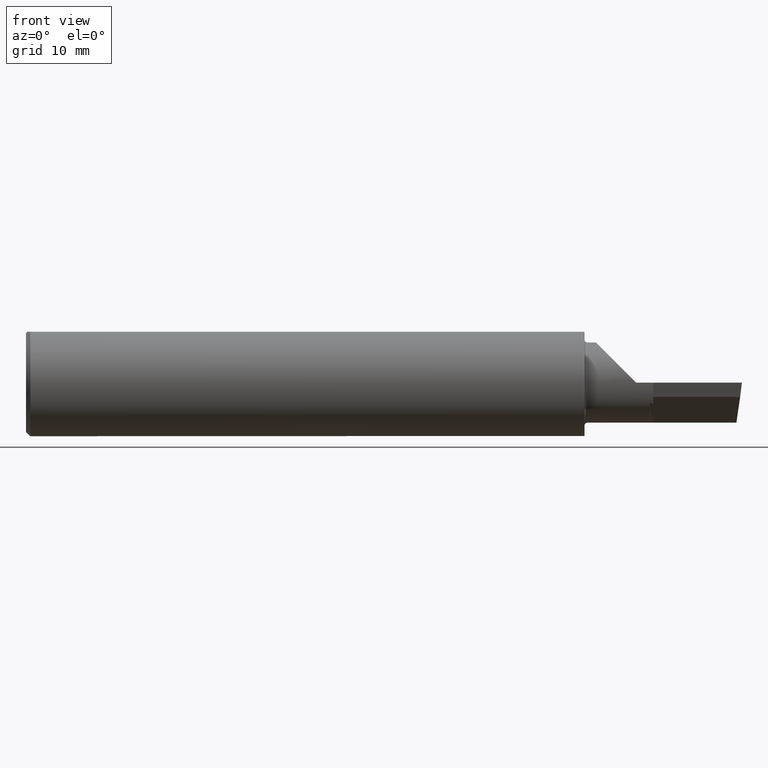
[diagram: clean part render]
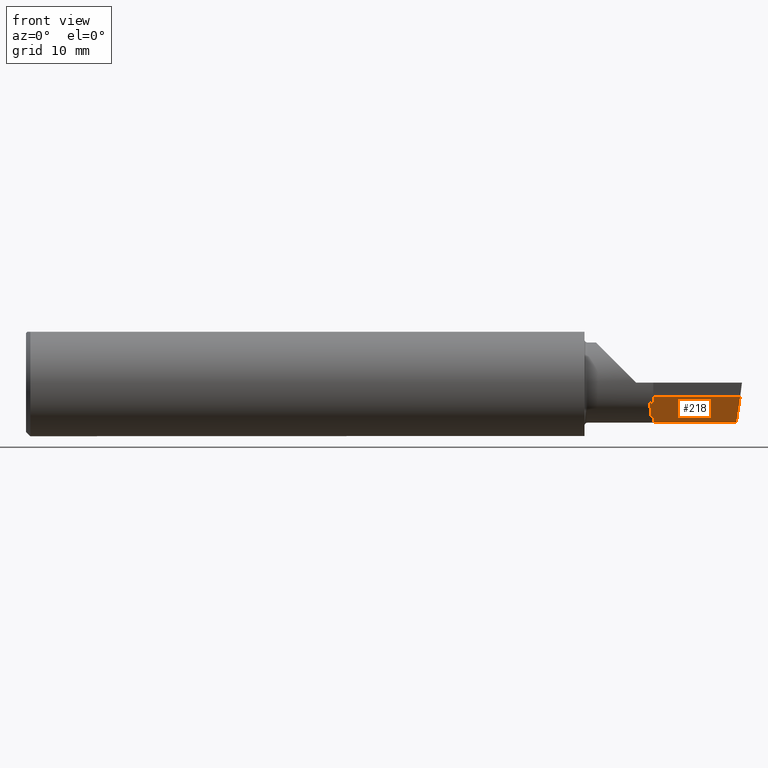
[diagram: same view with one face highlighted and labeled with its STEP entity id]
A machine part, front view. The second image highlights one B-rep face of the part: STEP entity #218.
In plain terms, the highlighted planar face has unit normal (0.0684, 0.71, 0.7009).
Its self-contained STEP definition (entity closure, byte-faithful):
#2 = ORIENTED_EDGE ( 'NONE', *, *, #161, .F. ) ;
#7 = CARTESIAN_POINT ( 'NONE',  ( 2.189999999999999947, 0.003938630626222059707, -0.1400500000000000078 ) ) ;
#11 = CARTESIAN_POINT ( 'NONE',  ( 2.177426863084049202, -0.06375161744379249928, -0.07025872252434531284 ) ) ;
#24 = DIRECTION ( 'NONE',  ( 0.000000000000000000, -0.7025528302622680021, 0.7116315905652844664 ) ) ;
#36 = DIRECTION ( 'NONE',  ( 0.9953961983671787417, -0.09584575252022421721, -0.000000000000000000 ) ) ;
#54 = CARTESIAN_POINT ( 'NONE',  ( 2.187448432732871151, -0.01683441884804644240, -0.1187596472685085724 ) ) ;
#59 = CARTESIAN_POINT ( 'NONE',  ( 2.189999999999999947, -0.01748911258856174558, -0.1183453561222312378 ) ) ;
#71 = ORIENTED_EDGE ( 'NONE', *, *, #98, .F. ) ;
#82 = VERTEX_POINT ( 'NONE', #404 ) ;
#98 = EDGE_CURVE ( 'NONE', #366, #82, #291, .T. ) ;
#120 = CARTESIAN_POINT ( 'NONE',  ( 2.184805551184139993, -0.01617630990044777867, -0.1191684915675323836 ) ) ;
#136 = DIRECTION ( 'NONE',  ( 0.000000000000000000, -0.7025528302622680021, 0.7116315905652844664 ) ) ;
#149 = DIRECTION ( 'NONE',  ( 0.000000000000000000, -0.7025528302622680021, 0.7116315905652844664 ) ) ;
#150 = AXIS2_PLACEMENT_3D ( 'NONE', #426, #416, #24 ) ;
#161 = EDGE_CURVE ( 'NONE', #304, #731, #309, .T. ) ;
#173 = VECTOR ( 'NONE', #531, 39.37007874015748143 ) ;
#191 = LINE ( 'NONE', #652, #711 ) ;
#200 = PLANE ( 'NONE',  #150 ) ;
#218 = ADVANCED_FACE ( 'NONE', ( #727 ), #200, .F. ) ;
#257 =( BOUNDED_CURVE ( )  B_SPLINE_CURVE ( 3, ( #349, #54, #120, #352 ),
 .UNSPECIFIED., .F., .T. ) 
 B_SPLINE_CURVE_WITH_KNOTS ( ( 4, 4 ),
 ( 3.369220829256468708, 3.385816822084442013 ),
 .UNSPECIFIED. ) 
 CURVE ( )  GEOMETRIC_REPRESENTATION_ITEM ( )  RATIONAL_B_SPLINE_CURVE ( ( 1.000000000000000000, 0.9999770478835389165, 0.9999770478835389165, 1.000000000000000000 ) ) 
 REPRESENTATION_ITEM ( '' )  );
#291 = LINE ( 'NONE', #458, #434 ) ;
#300 = LINE ( 'NONE', #650, #173 ) ;
#301 = EDGE_CURVE ( 'NONE', #591, #304, #300, .T. ) ;
#304 = VERTEX_POINT ( 'NONE', #11 ) ;
#309 =( BOUNDED_CURVE ( )  B_SPLINE_CURVE ( 3, ( #346, #406, #354, #577 ),
 .UNSPECIFIED., .F., .T. ) 
 B_SPLINE_CURVE_WITH_KNOTS ( ( 4, 4 ),
 ( 2.888141059890074303, 2.913964477923117968 ),
 .UNSPECIFIED. ) 
 CURVE ( )  GEOMETRIC_REPRESENTATION_ITEM ( )  RATIONAL_B_SPLINE_CURVE ( ( 1.000000000000000000, 0.9999444300287800846, 0.9999444300287800846, 1.000000000000000000 ) ) 
 REPRESENTATION_ITEM ( '' )  );
#334 = ORIENTED_EDGE ( 'NONE', *, *, #517, .F. ) ;
#338 = EDGE_CURVE ( 'NONE', #713, #701, #191, .T. ) ;
#346 = CARTESIAN_POINT ( 'NONE',  ( 2.177426863084049202, -0.06375161744379249928, -0.07025872252434531284 ) ) ;
#349 = CARTESIAN_POINT ( 'NONE',  ( 2.189999999999999947, -0.01748911258856174558, -0.1183453561222312378 ) ) ;
#352 = CARTESIAN_POINT ( 'NONE',  ( 2.182071537332980427, -0.01551483106074535816, -0.1195718608677767553 ) ) ;
#354 = CARTESIAN_POINT ( 'NONE',  ( 2.186029688399880211, -0.06252862236813255814, -0.07233658413215687810 ) ) ;
#366 = VERTEX_POINT ( 'NONE', #556 ) ;
#370 = CARTESIAN_POINT ( 'NONE',  ( 2.492051758343555523, -0.02514564569107190575, -0.1400500000000000078 ) ) ;
#373 = ORIENTED_EDGE ( 'NONE', *, *, #338, .F. ) ;
#381 = VECTOR ( 'NONE', #421, 39.37007874015748143 ) ;
#393 = CARTESIAN_POINT ( 'NONE',  ( 2.175518747519191720, -0.08356815525963089131, -0.04999999999999982236 ) ) ;
#404 = CARTESIAN_POINT ( 'NONE',  ( 2.480562016066065301, -0.02403930934313731893, -0.1400500000000000078 ) ) ;
#406 = CARTESIAN_POINT ( 'NONE',  ( 2.181838409852002059, -0.06314682718525910232, -0.07130160112223313251 ) ) ;
#416 = DIRECTION ( 'NONE',  ( 0.06836202603457081084, 0.7099667855717586296, 0.7009092642998473455 ) ) ;
#421 = DIRECTION ( 'NONE',  ( -0.9953961983671787417, 0.09584575252022423109, -1.541015391690661765E-17 ) ) ;
#426 = CARTESIAN_POINT ( 'NONE',  ( 2.175518747519191720, -0.08356815525963089131, -0.04999999999999982236 ) ) ;
#434 = VECTOR ( 'NONE', #695, 39.37007874015748143 ) ;
#458 = CARTESIAN_POINT ( 'NONE',  ( 2.488122802579768589, -0.07616661604293553656, -0.08798650540469074577 ) ) ;
#475 = VECTOR ( 'NONE', #149, 39.37007874015748854 ) ;
#489 = EDGE_CURVE ( 'NONE', #701, #591, #257, .T. ) ;
#500 = LINE ( 'NONE', #553, #475 ) ;
#517 = EDGE_CURVE ( 'NONE', #731, #532, #500, .T. ) ;
#531 = DIRECTION ( 'NONE',  ( -0.06717917588521415961, -0.6976824170844042605, 0.7132504491541851177 ) ) ;
#532 = VERTEX_POINT ( 'NONE', #616 ) ;
#553 = CARTESIAN_POINT ( 'NONE',  ( 2.189999999999999947, -0.1227135409340786715, -0.01176116190314393725 ) ) ;
#556 = CARTESIAN_POINT ( 'NONE',  ( 2.493639294701532449, -0.1141996799598987422, -0.04999999999999984318 ) ) ;
#557 = LINE ( 'NONE', #393, #633 ) ;
#562 = EDGE_CURVE ( 'NONE', #532, #366, #557, .T. ) ;
#577 = CARTESIAN_POINT ( 'NONE',  ( 2.189999999999999947, -0.06189710605328466175, -0.07336349901218836012 ) ) ;
#589 = ORIENTED_EDGE ( 'NONE', *, *, #562, .F. ) ;
#591 = VERTEX_POINT ( 'NONE', #658 ) ;
#597 = LINE ( 'NONE', #370, #381 ) ;
#616 = CARTESIAN_POINT ( 'NONE',  ( 2.189999999999999947, -0.08496254127771619979, -0.04999999999999982236 ) ) ;
#633 = VECTOR ( 'NONE', #36, 39.37007874015748143 ) ;
#650 = CARTESIAN_POINT ( 'NONE',  ( 2.175518747519191720, -0.08356815525963089131, -0.04999999999999982236 ) ) ;
#652 = CARTESIAN_POINT ( 'NONE',  ( 2.189999999999999947, -0.1227135409340786715, -0.01176116190314393725 ) ) ;
#657 = ORIENTED_EDGE ( 'NONE', *, *, #709, .F. ) ;
#658 = CARTESIAN_POINT ( 'NONE',  ( 2.182071537332980427, -0.01551483106074535816, -0.1195718608677767553 ) ) ;
#661 = CARTESIAN_POINT ( 'NONE',  ( 2.189999999999999947, -0.06189710605328466175, -0.07336349901218836012 ) ) ;
#671 = ORIENTED_EDGE ( 'NONE', *, *, #489, .F. ) ;
#676 = EDGE_LOOP ( 'NONE', ( #71, #589, #334, #2, #691, #671, #373, #657 ) ) ;
#691 = ORIENTED_EDGE ( 'NONE', *, *, #301, .F. ) ;
#695 = DIRECTION ( 'NONE',  ( -0.1020886612874964267, 0.7038430390621321919, -0.7029814233678643998 ) ) ;
#701 = VERTEX_POINT ( 'NONE', #59 ) ;
#709 = EDGE_CURVE ( 'NONE', #82, #713, #597, .T. ) ;
#711 = VECTOR ( 'NONE', #136, 39.37007874015748854 ) ;
#713 = VERTEX_POINT ( 'NONE', #7 ) ;
#727 = FACE_OUTER_BOUND ( 'NONE', #676, .T. ) ;
#731 = VERTEX_POINT ( 'NONE', #661 ) ;